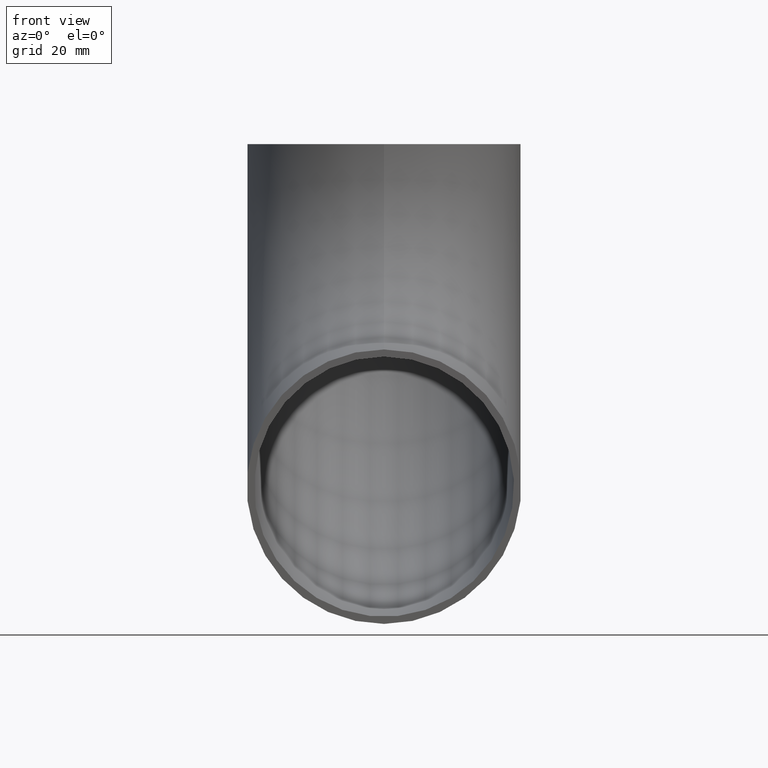
[diagram: clean part render]
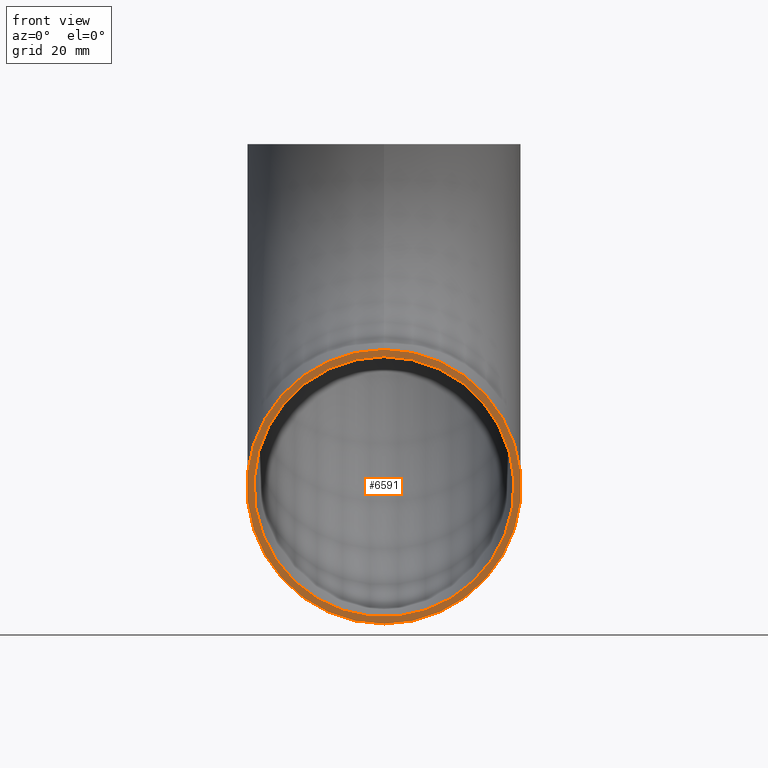
[diagram: same view with one face highlighted and labeled with its STEP entity id]
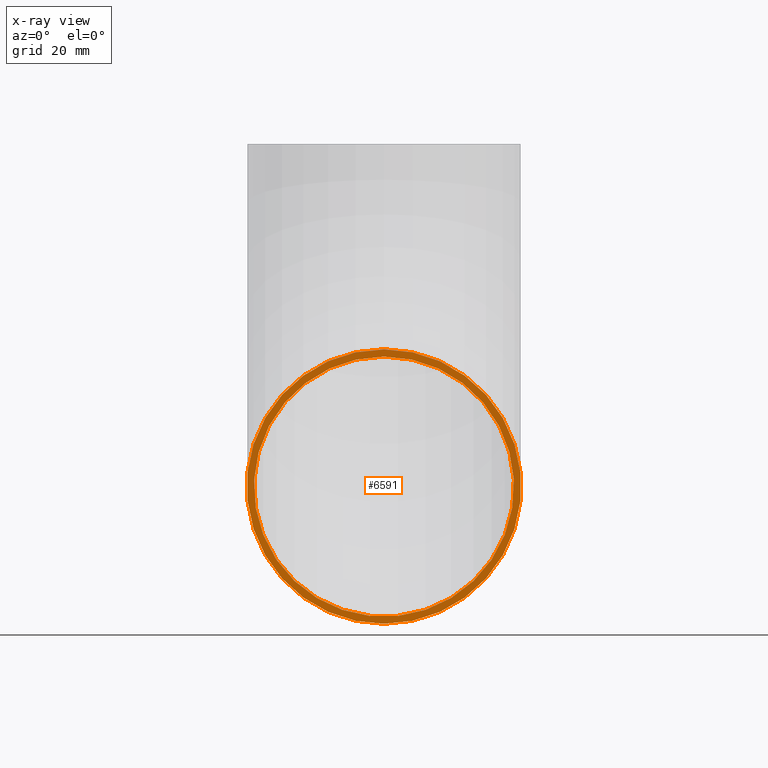
[diagram: x-ray of the same camera — body ghosted, the highlighted face saturated]
A machine part, front view. The second image highlights one B-rep face of the part: STEP entity #6591.
The next image is the same camera in x-ray: the body ghosted, the highlighted face saturated — about 0% of this face is hidden behind the body in this view.
In plain terms, the highlighted planar face has unit normal (0, 1, 0).
Its self-contained STEP definition (entity closure, byte-faithful):
#259 = CARTESIAN_POINT ( 'NONE',  ( 0.000000000000000000, 0.000000000000000000, -58.95000000000000284 ) ) ;
#1008 = PLANE ( 'NONE',  #2299 ) ;
#1540 = CARTESIAN_POINT ( 'NONE',  ( 0.000000000000000000, 0.000000000000000000, -95.00000000000000000 ) ) ;
#1954 = DIRECTION ( 'NONE',  ( 0.000000000000000000, 0.000000000000000000, 1.000000000000000000 ) ) ;
#2099 = DIRECTION ( 'NONE',  ( 0.000000000000000000, -0.000000000000000000, 1.000000000000000000 ) ) ;
#2299 = AXIS2_PLACEMENT_3D ( 'NONE', #8910, #7377, #2099 ) ;
#2524 = AXIS2_PLACEMENT_3D ( 'NONE', #4418, #3586, #1954 ) ;
#2630 = EDGE_LOOP ( 'NONE', ( #7288 ) ) ;
#3586 = DIRECTION ( 'NONE',  ( 0.000000000000000000, 1.000000000000000000, 0.000000000000000000 ) ) ;
#3937 = VERTEX_POINT ( 'NONE', #259 ) ;
#4233 = FACE_OUTER_BOUND ( 'NONE', #2630, .T. ) ;
#4306 = DIRECTION ( 'NONE',  ( 0.000000000000000000, 0.000000000000000000, 1.000000000000000000 ) ) ;
#4418 = CARTESIAN_POINT ( 'NONE',  ( 0.000000000000000000, 0.000000000000000000, -95.00000000000000000 ) ) ;
#4469 = CIRCLE ( 'NONE', #2524, 36.04999999999999716 ) ;
#4547 = EDGE_CURVE ( 'NONE', #3937, #3937, #4469, .T. ) ;
#5074 = DIRECTION ( 'NONE',  ( 0.000000000000000000, 1.000000000000000000, 0.000000000000000000 ) ) ;
#5092 = EDGE_CURVE ( 'NONE', #6402, #6402, #5970, .T. ) ;
#5511 = CARTESIAN_POINT ( 'NONE',  ( 0.000000000000000000, 0.000000000000000000, -56.95000000000000995 ) ) ;
#5970 = CIRCLE ( 'NONE', #9454, 38.04999999999999005 ) ;
#6402 = VERTEX_POINT ( 'NONE', #5511 ) ;
#6591 = ADVANCED_FACE ( 'NONE', ( #9753, #4233 ), #1008, .F. ) ;
#7288 = ORIENTED_EDGE ( 'NONE', *, *, #5092, .F. ) ;
#7377 = DIRECTION ( 'NONE',  ( 0.000000000000000000, 1.000000000000000000, 0.000000000000000000 ) ) ;
#8910 = CARTESIAN_POINT ( 'NONE',  ( 0.000000000000000000, 0.000000000000000000, -95.00000000000000000 ) ) ;
#9442 = ORIENTED_EDGE ( 'NONE', *, *, #4547, .T. ) ;
#9454 = AXIS2_PLACEMENT_3D ( 'NONE', #1540, #5074, #4306 ) ;
#9637 = EDGE_LOOP ( 'NONE', ( #9442 ) ) ;
#9753 = FACE_BOUND ( 'NONE', #9637, .T. ) ;